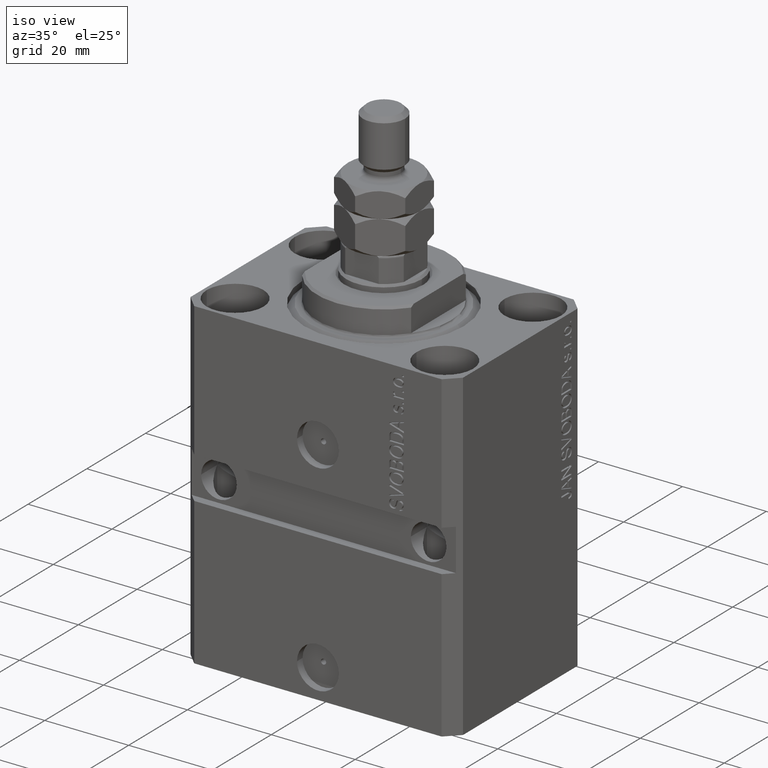
[diagram: clean part render]
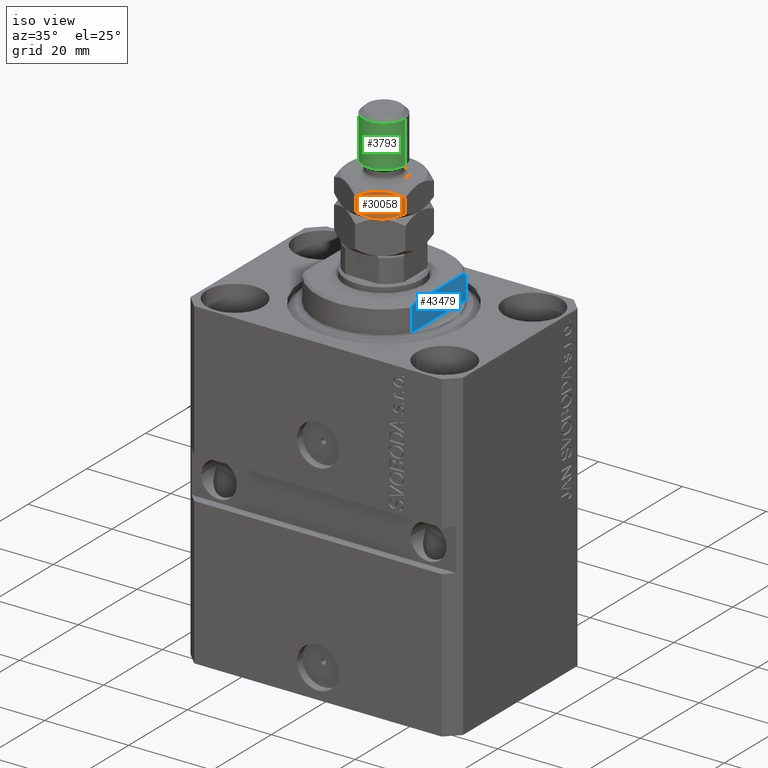
[diagram: same view with three faces highlighted in distinct colors, each labeled with its STEP entity id]
A machine part, iso view with three faces highlighted in distinct colors.
Their STEP definitions:

[orange] entity #30058 — the highlighted planar face has unit normal (-0.5, 0.866, 0).
#57 = CARTESIAN_POINT ( 'NONE',  ( 4.887551235985699338E-16, -9.814954576223636096, 14.00000000000000000 ) ) ;
#333 = CARTESIAN_POINT ( 'NONE',  ( 1.350892646810553321, -9.035016342941275980, 8.600938412736123695 ) ) ;
#1502 = CARTESIAN_POINT ( 'NONE',  ( 6.092930036521918780, -6.297199779484148330, 8.253624089324652857 ) ) ;
#1574 = CARTESIAN_POINT ( 'NONE',  ( 4.250000000000000000, -7.361215932167723963, 14.00000000000000000 ) ) ;
#3616 = CARTESIAN_POINT ( 'NONE',  ( 1.348005192929855101, -9.036683415216568704, 13.39679078757987085 ) ) ;
#4749 = CARTESIAN_POINT ( 'NONE',  ( 3.499970675361009143, -7.794245564648159430, 13.96626325040163330 ) ) ;
#5440 = CARTESIAN_POINT ( 'NONE',  ( 7.151994807070138016, -5.685748449118881886, 8.603209212420120267 ) ) ;
#5512 = ORIENTED_EDGE ( 'NONE', *, *, #39895, .F. ) ;
#5767 = EDGE_LOOP ( 'NONE', ( #32445, #5818, #5512, #7941, #30384, #22956 ) ) ;
#5818 = ORIENTED_EDGE ( 'NONE', *, *, #32679, .F. ) ;
#5972 = CARTESIAN_POINT ( 'NONE',  ( 4.249999999999994671, -7.361215932167728404, 8.000000000000000000 ) ) ;
#6940 = EDGE_CURVE ( 'NONE', #16595, #10207, #43856, .T. ) ;
#7069 = AXIS2_PLACEMENT_3D ( 'NONE', #57, #7713, #7487 ) ;
#7268 = PLANE ( 'NONE',  #7069 ) ;
#7487 = DIRECTION ( 'NONE',  ( -0.8660254037844383745, -0.5000000000000003331, 0.000000000000000000 ) ) ;
#7547 = B_SPLINE_CURVE_WITH_KNOTS ( 'NONE', 3,
 ( #1574, #29919, #12253, #26427, #22945, #8998 ),
 .UNSPECIFIED., .F., .F.,
 ( 4, 2, 4 ),
 ( 0.005087299150080239023, 0.007613005268011858312, 0.01013871138594347673 ),
 .UNSPECIFIED. ) ;
#7713 = DIRECTION ( 'NONE',  ( -0.5000000000000004441, 0.8660254037844384856, 0.000000000000000000 ) ) ;
#7941 = ORIENTED_EDGE ( 'NONE', *, *, #6940, .F. ) ;
#7979 = CARTESIAN_POINT ( 'NONE',  ( -5.628679446399007628E-16, -9.814954576223636096, 12.68504542377636568 ) ) ;
#8696 = CARTESIAN_POINT ( 'NONE',  ( 7.833539178395709790, -5.292258622869385754, 8.930173241466057732 ) ) ;
#8998 = CARTESIAN_POINT ( 'NONE',  ( 8.499999999999996447, -4.907477288111814495, 12.68504542377636923 ) ) ;
#10207 = VERTEX_POINT ( 'NONE', #38383 ) ;
#10558 = CARTESIAN_POINT ( 'NONE',  ( 3.510754653168321582, -7.788019432158173494, 8.000000000000000000 ) ) ;
#11246 = CARTESIAN_POINT ( 'NONE',  ( 2.784079206026080833, -8.207565697179237674, 8.130520287383214750 ) ) ;
#11946 = CARTESIAN_POINT ( 'NONE',  ( 3.877770021349440821, -7.576123010542071157, 13.99999999999999289 ) ) ;
#12253 = CARTESIAN_POINT ( 'NONE',  ( 5.715920793973917391, -6.514866167156213805, 13.86947971261678347 ) ) ;
#13613 = CARTESIAN_POINT ( 'NONE',  ( 4.887551235985699338E-16, -9.814954576223636096, 14.00000000000000000 ) ) ;
#14505 = CARTESIAN_POINT ( 'NONE',  ( -5.628679446399007628E-16, -9.814954576223636096, 12.68504542377636568 ) ) ;
#14736 = CARTESIAN_POINT ( 'NONE',  ( 6.428361570398703622E-17, -9.814954576223636096, 9.314954576223632543 ) ) ;
#16584 = CARTESIAN_POINT ( 'NONE',  ( 8.499999999999996447, -4.907477288111814495, 12.68504542377636923 ) ) ;
#16591 = EDGE_CURVE ( 'NONE', #16595, #22211, #25620, .T. ) ;
#16595 = VERTEX_POINT ( 'NONE', #7979 ) ;
#17372 = CARTESIAN_POINT ( 'NONE',  ( 8.499999999999996447, -4.907477288111814495, 9.314954576223630767 ) ) ;
#17769 = CARTESIAN_POINT ( 'NONE',  ( 2.407069963478077668, -8.425232084851300485, 13.74637591067534181 ) ) ;
#18444 = CARTESIAN_POINT ( 'NONE',  ( 0.6656893889372508255, -9.430618628324038966, 8.930618628323932384 ) ) ;
#21333 = VERTEX_POINT ( 'NONE', #17372 ) ;
#21935 = CARTESIAN_POINT ( 'NONE',  ( 2.766281260884826843, -8.217841345597564739, 13.83917829205816830 ) ) ;
#22211 = VERTEX_POINT ( 'NONE', #39913 ) ;
#22318 = DIRECTION ( 'NONE',  ( -0.000000000000000000, -0.000000000000000000, -1.000000000000000000 ) ) ;
#22945 = CARTESIAN_POINT ( 'NONE',  ( 7.834310611062744734, -5.291813236011414290, 13.06938137167606939 ) ) ;
#22956 = ORIENTED_EDGE ( 'NONE', *, *, #41211, .F. ) ;
#25620 = LINE ( 'NONE', #13613, #25782 ) ;
#25782 = VECTOR ( 'NONE', #39809, 1000.000000000000000 ) ;
#26427 = CARTESIAN_POINT ( 'NONE',  ( 7.149107353189444680, -5.687415521394174611, 13.39906158726387986 ) ) ;
#26816 = CARTESIAN_POINT ( 'NONE',  ( 4.249999999999994671, -7.361215932167728404, 8.000000000000000000 ) ) ;
#26817 = EDGE_CURVE ( 'NONE', #21333, #35663, #42180, .T. ) ;
#29059 = CARTESIAN_POINT ( 'NONE',  ( 8.499999999999996447, -4.907477288111814495, 14.00000000000000000 ) ) ;
#29529 = LINE ( 'NONE', #29059, #45760 ) ;
#29615 = CARTESIAN_POINT ( 'NONE',  ( 4.250000000000000000, -7.361215932167723963, 14.00000000000000000 ) ) ;
#29919 = CARTESIAN_POINT ( 'NONE',  ( 4.989245346831673089, -6.934412432177277097, 13.99999999999999822 ) ) ;
#30058 = ADVANCED_FACE ( 'NONE', ( #42379 ), #7268, .F. ) ;
#30306 = CARTESIAN_POINT ( 'NONE',  ( 5.000029324638988193, -6.928186299687292937, 8.033736749598364923 ) ) ;
#30384 = ORIENTED_EDGE ( 'NONE', *, *, #16591, .T. ) ;
#32273 = VERTEX_POINT ( 'NONE', #16584 ) ;
#32399 = CARTESIAN_POINT ( 'NONE',  ( 4.249999999999994671, -7.361215932167728404, 8.000000000000000000 ) ) ;
#32445 = ORIENTED_EDGE ( 'NONE', *, *, #26817, .F. ) ;
#32679 = EDGE_CURVE ( 'NONE', #32273, #21333, #29529, .T. ) ;
#34029 = CARTESIAN_POINT ( 'NONE',  ( 5.733718739115168717, -6.504590518737889404, 8.160821707941831704 ) ) ;
#35452 = CARTESIAN_POINT ( 'NONE',  ( 0.6664608216042844369, -9.430173241466061285, 13.06982675853393516 ) ) ;
#35663 = VERTEX_POINT ( 'NONE', #5972 ) ;
#38383 = CARTESIAN_POINT ( 'NONE',  ( 4.250000000000000000, -7.361215932167723963, 14.00000000000000000 ) ) ;
#39809 = DIRECTION ( 'NONE',  ( -0.000000000000000000, -0.000000000000000000, -1.000000000000000000 ) ) ;
#39895 = EDGE_CURVE ( 'NONE', #10207, #32273, #7547, .T. ) ;
#39913 = CARTESIAN_POINT ( 'NONE',  ( 6.428361570398703622E-17, -9.814954576223636096, 9.314954576223632543 ) ) ;
#40642 = B_SPLINE_CURVE_WITH_KNOTS ( 'NONE', 3,
 ( #32399, #10558, #11246, #333, #18444, #14736 ),
 .UNSPECIFIED., .F., .F.,
 ( 4, 2, 4 ),
 ( 0.005087299150080240757, 0.007613005268011858312, 0.01013871138594347673 ),
 .UNSPECIFIED. ) ;
#40993 = CARTESIAN_POINT ( 'NONE',  ( 8.499999999999996447, -4.907477288111814495, 9.314954576223630767 ) ) ;
#41211 = EDGE_CURVE ( 'NONE', #35663, #22211, #40642, .T. ) ;
#42180 = B_SPLINE_CURVE_WITH_KNOTS ( 'NONE', 3,
 ( #40993, #8696, #5440, #1502, #34029, #30306, #44951, #26816 ),
 .UNSPECIFIED., .F., .F.,
 ( 4, 2, 2, 4 ),
 ( 2.544313836655798784E-07, 0.002543776790731953202, 0.003815537970406096980, 0.005087299150080240757 ),
 .UNSPECIFIED. ) ;
#42379 = FACE_OUTER_BOUND ( 'NONE', #5767, .T. ) ;
#43856 = B_SPLINE_CURVE_WITH_KNOTS ( 'NONE', 3,
 ( #14505, #35452, #3616, #17769, #21935, #4749, #11946, #29615 ),
 .UNSPECIFIED., .F., .F.,
 ( 4, 2, 2, 4 ),
 ( 2.544313836642342607E-07, 0.002543776790731951901, 0.003815537970406096113, 0.005087299150080239023 ),
 .UNSPECIFIED. ) ;
#44951 = CARTESIAN_POINT ( 'NONE',  ( 4.622229978650554294, -7.146308853793378546, 8.000000000000001776 ) ) ;
#45760 = VECTOR ( 'NONE', #22318, 1000.000000000000000 ) ;

[blue] entity #43479 — the highlighted planar face has unit normal (-1, 0, 0).
#1287 = VERTEX_POINT ( 'NONE', #23110 ) ;
#1851 = VERTEX_POINT ( 'NONE', #41143 ) ;
#1869 = FACE_OUTER_BOUND ( 'NONE', #40801, .T. ) ;
#2854 = ORIENTED_EDGE ( 'NONE', *, *, #32411, .F. ) ;
#3030 = B_SPLINE_CURVE_WITH_KNOTS ( 'NONE', 3,
 ( #25868, #39583, #40053, #4498 ),
 .UNSPECIFIED., .F., .F.,
 ( 4, 4 ),
 ( 0.04915043732154475431, 0.05017913261572017058 ),
 .UNSPECIFIED. ) ;
#3439 = CARTESIAN_POINT ( 'NONE',  ( -13.00000000000000000, 9.327379053088916905, -6.000000000000014211 ) ) ;
#3632 = EDGE_CURVE ( 'NONE', #31148, #5572, #29644, .T. ) ;
#3861 = ORIENTED_EDGE ( 'NONE', *, *, #10328, .F. ) ;
#4498 = CARTESIAN_POINT ( 'NONE',  ( -13.00000000000000000, -9.327379053088815652, -6.000000000000023981 ) ) ;
#5572 = VERTEX_POINT ( 'NONE', #45011 ) ;
#6265 = VERTEX_POINT ( 'NONE', #18389 ) ;
#7737 = DIRECTION ( 'NONE',  ( -0.000000000000000000, -0.000000000000000000, 1.000000000000000000 ) ) ;
#8313 = CARTESIAN_POINT ( 'NONE',  ( -13.00000000000000000, -9.327379053088815652, -0.4999999999999995559 ) ) ;
#8744 = CARTESIAN_POINT ( 'NONE',  ( -13.00000000000000000, 8.738667591047022398, -6.337881022290549282 ) ) ;
#10125 = VECTOR ( 'NONE', #22997, 1000.000000000000000 ) ;
#10328 = EDGE_CURVE ( 'NONE', #36574, #6265, #12310, .T. ) ;
#12310 = LINE ( 'NONE', #16702, #10125 ) ;
#12552 = CARTESIAN_POINT ( 'NONE',  ( -13.00000000000000000, -43.08131845707602992, -0.4999999999999995559 ) ) ;
#13243 = ORIENTED_EDGE ( 'NONE', *, *, #44032, .T. ) ;
#13625 = LINE ( 'NONE', #30847, #16274 ) ;
#14708 = CARTESIAN_POINT ( 'NONE',  ( -13.00000000000000000, 9.327379053088813876, -6.500000000000000000 ) ) ;
#14743 = AXIS2_PLACEMENT_3D ( 'NONE', #12552, #19750, #43730 ) ;
#16274 = VECTOR ( 'NONE', #24092, 1000.000000000000000 ) ;
#16702 = CARTESIAN_POINT ( 'NONE',  ( -13.00000000000000000, -9.327379053088813876, -6.500000000000000000 ) ) ;
#18389 = CARTESIAN_POINT ( 'NONE',  ( -13.00000000000000000, -9.327379053088815652, -6.000000000000023981 ) ) ;
#19750 = DIRECTION ( 'NONE',  ( 1.000000000000000000, 0.000000000000000000, 0.000000000000000000 ) ) ;
#22326 = PLANE ( 'NONE',  #14743 ) ;
#22913 = CARTESIAN_POINT ( 'NONE',  ( -13.00000000000000000, 8.440971508067139695, -6.500000000000000000 ) ) ;
#22997 = DIRECTION ( 'NONE',  ( 0.000000000000000000, 0.000000000000000000, -1.000000000000000000 ) ) ;
#23110 = CARTESIAN_POINT ( 'NONE',  ( -13.00000000000000000, 9.327379053088815652, -0.4999999999999995559 ) ) ;
#23380 = LINE ( 'NONE', #34316, #41881 ) ;
#24092 = DIRECTION ( 'NONE',  ( -0.000000000000000000, -1.000000000000000000, -0.000000000000000000 ) ) ;
#25384 = LINE ( 'NONE', #14708, #31648 ) ;
#25868 = CARTESIAN_POINT ( 'NONE',  ( -13.00000000000000000, -8.440971508067139695, -6.500000000000000000 ) ) ;
#26396 = CARTESIAN_POINT ( 'NONE',  ( -13.00000000000000000, 9.034035639617135516, -6.171007825636148247 ) ) ;
#26606 = ORIENTED_EDGE ( 'NONE', *, *, #27558, .F. ) ;
#27558 = EDGE_CURVE ( 'NONE', #1287, #36574, #23380, .T. ) ;
#28501 = ORIENTED_EDGE ( 'NONE', *, *, #3632, .T. ) ;
#29644 = B_SPLINE_CURVE_WITH_KNOTS ( 'NONE', 3,
 ( #44082, #26396, #8744, #22913 ),
 .UNSPECIFIED., .F., .F.,
 ( 4, 4 ),
 ( 0.03031084603841392722, 0.03132841702658674399 ),
 .UNSPECIFIED. ) ;
#30847 = CARTESIAN_POINT ( 'NONE',  ( -13.00000000000000000, -43.08131845707602992, -6.500000000000000000 ) ) ;
#31148 = VERTEX_POINT ( 'NONE', #3439 ) ;
#31648 = VECTOR ( 'NONE', #7737, 1000.000000000000000 ) ;
#32411 = EDGE_CURVE ( 'NONE', #31148, #1287, #25384, .T. ) ;
#34316 = CARTESIAN_POINT ( 'NONE',  ( -13.00000000000000000, -43.08131845707602992, -0.4999999999999995559 ) ) ;
#36574 = VERTEX_POINT ( 'NONE', #8313 ) ;
#39258 = ORIENTED_EDGE ( 'NONE', *, *, #40295, .T. ) ;
#39583 = CARTESIAN_POINT ( 'NONE',  ( -13.00000000000000000, -8.738941625005658409, -6.337731789204286592 ) ) ;
#40053 = CARTESIAN_POINT ( 'NONE',  ( -13.00000000000000000, -9.034292940839598884, -6.170857829009066542 ) ) ;
#40295 = EDGE_CURVE ( 'NONE', #1851, #6265, #3030, .T. ) ;
#40801 = EDGE_LOOP ( 'NONE', ( #28501, #13243, #39258, #3861, #26606, #2854 ) ) ;
#41143 = CARTESIAN_POINT ( 'NONE',  ( -13.00000000000000000, -8.440971508067139695, -6.500000000000000000 ) ) ;
#41881 = VECTOR ( 'NONE', #45254, 1000.000000000000000 ) ;
#43479 = ADVANCED_FACE ( 'NONE', ( #1869 ), #22326, .F. ) ;
#43730 = DIRECTION ( 'NONE',  ( 0.000000000000000000, 0.000000000000000000, -1.000000000000000000 ) ) ;
#44032 = EDGE_CURVE ( 'NONE', #5572, #1851, #13625, .T. ) ;
#44082 = CARTESIAN_POINT ( 'NONE',  ( -13.00000000000000000, 9.327379053088916905, -6.000000000000014211 ) ) ;
#45011 = CARTESIAN_POINT ( 'NONE',  ( -13.00000000000000000, 8.440971508067139695, -6.500000000000000000 ) ) ;
#45254 = DIRECTION ( 'NONE',  ( -0.000000000000000000, -1.000000000000000000, -0.000000000000000000 ) ) ;

[green] entity #3793 — the highlighted cylindrical surface (edge-blend (fillet) strip) has radius 5 mm, axis along (-0, -0, -1).
#2506 = DIRECTION ( 'NONE',  ( 0.000000000000000000, 0.000000000000000000, -1.000000000000000000 ) ) ;
#2558 = AXIS2_PLACEMENT_3D ( 'NONE', #5915, #15892, #6138 ) ;
#3793 = ADVANCED_FACE ( 'NONE', ( #20804 ), #42428, .T. ) ;
#4299 = VECTOR ( 'NONE', #40187, 1000.000000000000000 ) ;
#5915 = CARTESIAN_POINT ( 'NONE',  ( 0.000000000000000000, 0.000000000000000000, 17.00000000000000355 ) ) ;
#5940 = EDGE_CURVE ( 'NONE', #10997, #13734, #33763, .T. ) ;
#6138 = DIRECTION ( 'NONE',  ( 1.000000000000000000, 0.000000000000000000, 0.000000000000000000 ) ) ;
#6406 = DIRECTION ( 'NONE',  ( -1.000000000000000000, 0.000000000000000000, 0.000000000000000000 ) ) ;
#8556 = CARTESIAN_POINT ( 'NONE',  ( 5.000000000000000000, 6.123233995736766282E-16, 17.00000000000000355 ) ) ;
#10255 = CARTESIAN_POINT ( 'NONE',  ( -5.000000000000000000, 0.000000000000000000, 17.00000000000000355 ) ) ;
#10562 = DIRECTION ( 'NONE',  ( -0.000000000000000000, -0.000000000000000000, -1.000000000000000000 ) ) ;
#10997 = VERTEX_POINT ( 'NONE', #19616 ) ;
#11053 = EDGE_LOOP ( 'NONE', ( #40756, #43715, #22937, #20902 ) ) ;
#11414 = VERTEX_POINT ( 'NONE', #10255 ) ;
#13721 = EDGE_CURVE ( 'NONE', #10997, #26209, #36703, .T. ) ;
#13734 = VERTEX_POINT ( 'NONE', #43454 ) ;
#14050 = CARTESIAN_POINT ( 'NONE',  ( 0.000000000000000000, 0.000000000000000000, 28.00000000000000000 ) ) ;
#15892 = DIRECTION ( 'NONE',  ( -0.000000000000000000, -0.000000000000000000, 1.000000000000000000 ) ) ;
#16217 = DIRECTION ( 'NONE',  ( 1.000000000000000000, 0.000000000000000000, 0.000000000000000000 ) ) ;
#16313 = LINE ( 'NONE', #30498, #32368 ) ;
#18886 = AXIS2_PLACEMENT_3D ( 'NONE', #31310, #2506, #16217 ) ;
#19616 = CARTESIAN_POINT ( 'NONE',  ( 5.000000000000000000, 6.123233995736766282E-16, 26.99999999999998934 ) ) ;
#20319 = AXIS2_PLACEMENT_3D ( 'NONE', #14050, #10562, #6406 ) ;
#20804 = FACE_OUTER_BOUND ( 'NONE', #11053, .T. ) ;
#20902 = ORIENTED_EDGE ( 'NONE', *, *, #27882, .T. ) ;
#22937 = ORIENTED_EDGE ( 'NONE', *, *, #33389, .T. ) ;
#25530 = CIRCLE ( 'NONE', #2558, 5.000000000000000000 ) ;
#25772 = CARTESIAN_POINT ( 'NONE',  ( 5.000000000000000000, 6.123233995736766282E-16, 28.00000000000000000 ) ) ;
#26209 = VERTEX_POINT ( 'NONE', #8556 ) ;
#27882 = EDGE_CURVE ( 'NONE', #11414, #26209, #25530, .T. ) ;
#30498 = CARTESIAN_POINT ( 'NONE',  ( -5.000000000000000000, 0.000000000000000000, 28.00000000000000000 ) ) ;
#31310 = CARTESIAN_POINT ( 'NONE',  ( 0.000000000000000000, 0.000000000000000000, 26.99999999999998934 ) ) ;
#32368 = VECTOR ( 'NONE', #45159, 1000.000000000000000 ) ;
#33389 = EDGE_CURVE ( 'NONE', #13734, #11414, #16313, .T. ) ;
#33763 = CIRCLE ( 'NONE', #18886, 5.000000000000000000 ) ;
#36703 = LINE ( 'NONE', #25772, #4299 ) ;
#40187 = DIRECTION ( 'NONE',  ( -0.000000000000000000, -0.000000000000000000, -1.000000000000000000 ) ) ;
#40756 = ORIENTED_EDGE ( 'NONE', *, *, #13721, .F. ) ;
#42428 = CYLINDRICAL_SURFACE ( 'NONE', #20319, 5.000000000000000000 ) ;
#43454 = CARTESIAN_POINT ( 'NONE',  ( -5.000000000000000000, 0.000000000000000000, 26.99999999999998934 ) ) ;
#43715 = ORIENTED_EDGE ( 'NONE', *, *, #5940, .T. ) ;
#45159 = DIRECTION ( 'NONE',  ( -0.000000000000000000, -0.000000000000000000, -1.000000000000000000 ) ) ;